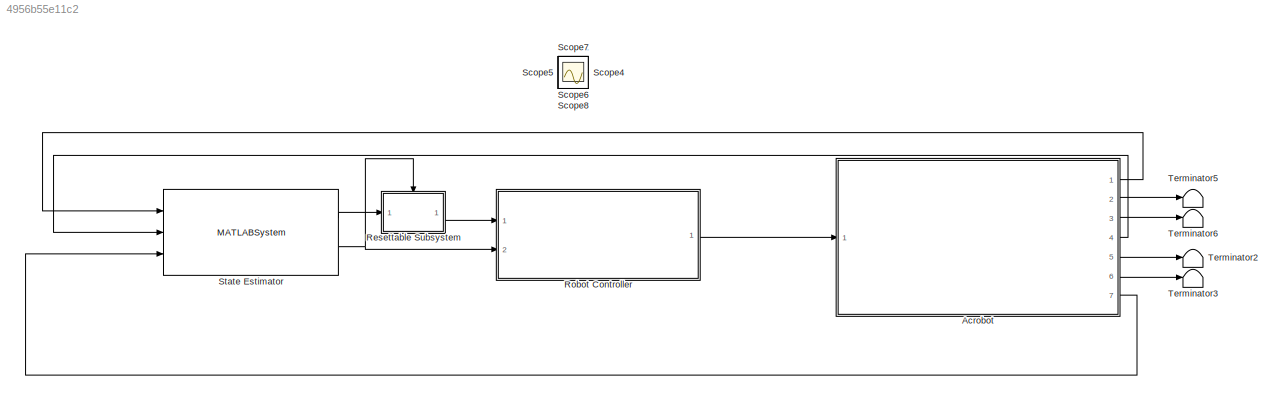
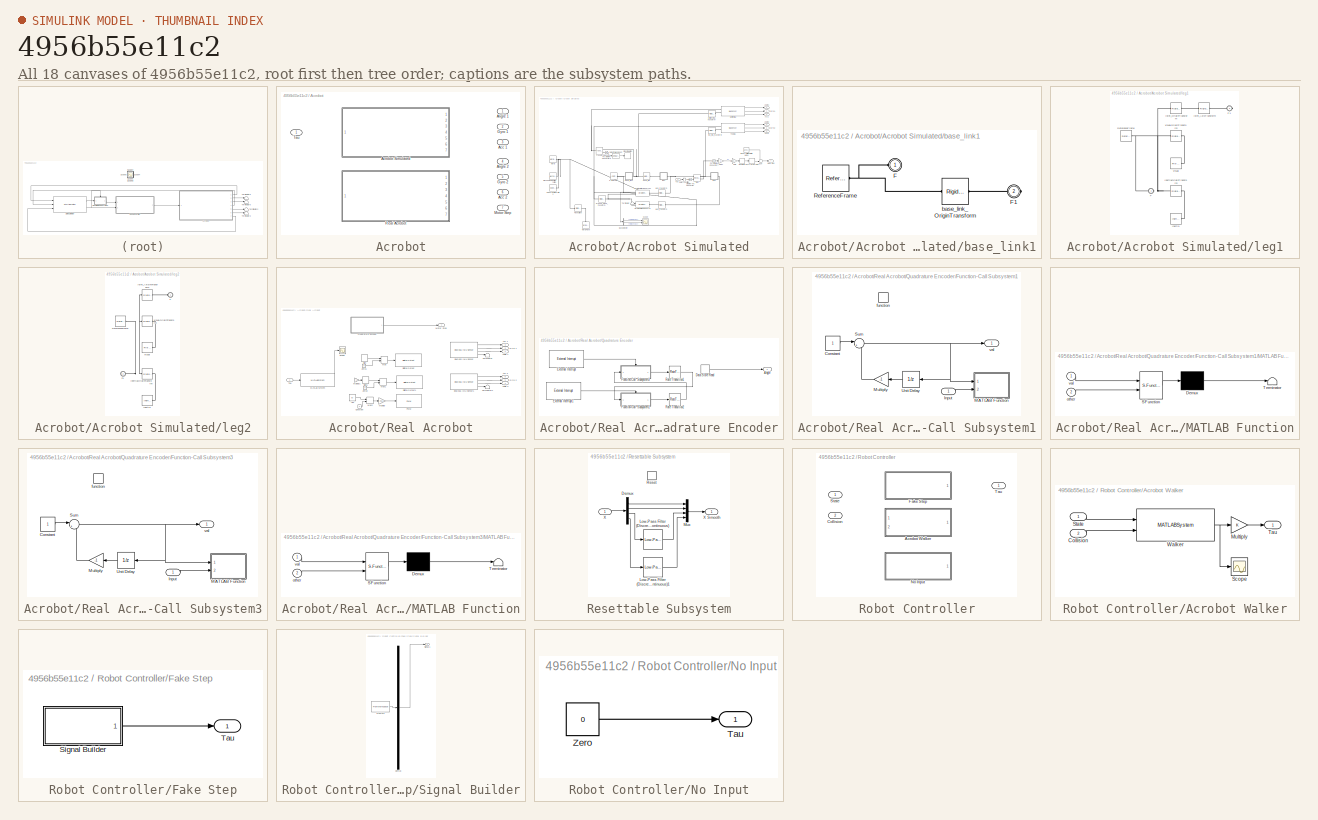
[diagram: thumbnail index - all 18 canvases of the model, root first then tree order]
MODEL slx_4956b55e11c2
KIND model
CONFIG AbsTol = auto
CONFIG EnableMultiTasking = on
CONFIG FixedStep = 0.0001
CONFIG MaxStep = auto
CONFIG MinStep = auto
CONFIG PreLoadFcn = addpath(genpath('libraries'));                  % Simulation Libraries\nrobotParameters;\n
CONFIG RelTol = 1e-3
CONFIG SampleTimeConstraint = Unconstrained
CONFIG Solver = FixedStepAuto
CONFIG SolverName = FixedStepAuto
CONFIG StartFcn = robotParameters;
CONFIG StartTime = 0.0
CONFIG StopTime = inf
WORKSPACE source: mxarray member
WORKSPACE A: Simulink.Signal (value not decoded)
BLOCK [SubSystem] Acrobot
  Ports = [1, 7]
  RequestExecContextInheritance = off
  Variant = on
  VariantControl = Variant1
BLOCK [Outport] Acrobot/Acc 1
  IconDisplay = Port number
  Port = 3
BLOCK [Outport] Acrobot/Acc 2
  IconDisplay = Port number
  Port = 6
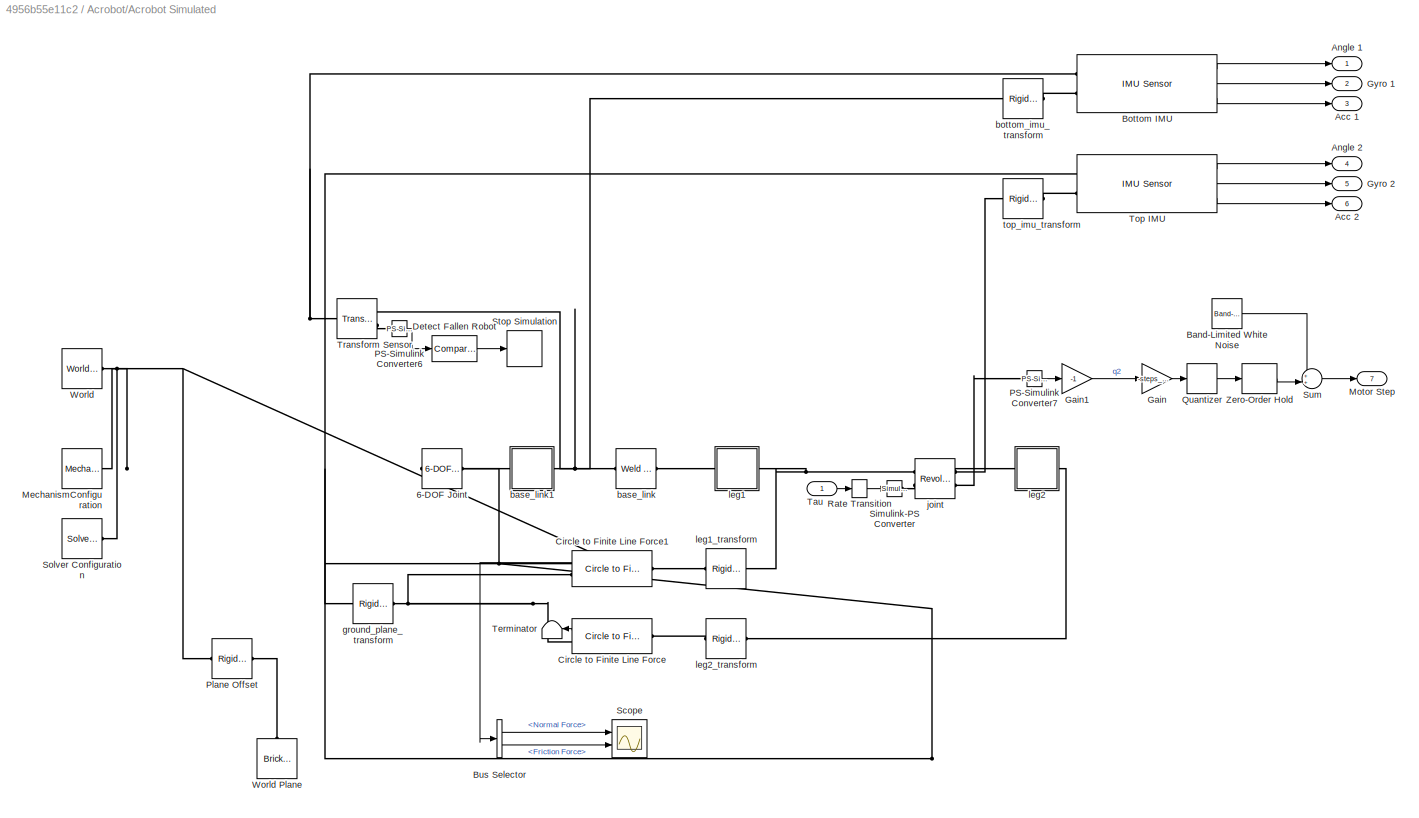
BLOCK [SubSystem] Acrobot/Acrobot Simulated
  Ports = [1, 7]
  RequestExecContextInheritance = off
  VariantControl = SIM_OUTPUT==1
BLOCK [Reference] Acrobot/Acrobot Simulated/6-DOF Joint  REF=sm_lib/Joints/6-DOF Joint
  Ports = [0, 0, 0, 0, 0, 1, 1]
  SourceBlock = sm_lib/Joints/6-DOF Joint
  SourceProductBaseCode = MS
  SourceProductName = Simscape Multibody
  SourceType = 6-DOF Joint
BLOCK [Outport] Acrobot/Acrobot Simulated/Acc 1
  IconDisplay = Port number
  Port = 3
BLOCK [Outport] Acrobot/Acrobot Simulated/Acc 2
  IconDisplay = Port number
  Port = 6
BLOCK [Outport] Acrobot/Acrobot Simulated/Angle 1
  IconDisplay = Port number
BLOCK [Outport] Acrobot/Acrobot Simulated/Angle 2
  IconDisplay = Port number
  Port = 4
BLOCK [Reference] Acrobot/Acrobot Simulated/Band-Limited White Noise  REF=simulink/Sources/Band-Limited
White Noise
  Ports = [0, 1]
  SourceBlock = simulink/Sources/Band-Limited\nWhite Noise
  SourceProductBaseCode = SL
  SourceProductName = Simulink
  SourceType = Band-Limited White Noise.
BLOCK [Reference] Acrobot/Acrobot Simulated/Bottom IMU  REF=imu_library/IMU Sensor  (lib defined in slx_344199f270f5)
  Ports = [0, 3, 0, 0, 0, 2]
  SourceBlock = imu_library/IMU Sensor
  SourceType = SubSystem
BLOCK [BusSelector] Acrobot/Acrobot Simulated/Bus Selector
  OutputAsBus = off
  OutputSignals = Normal Force,Friction Force
  Ports = [1, 2]
BLOCK [Reference] Acrobot/Acrobot Simulated/Circle to Finite Line Force  REF=Contact_Forces_Lib/2D/Circle to Finite Line Force
  Ports = [0, 1, 0, 0, 0, 1, 1]
  SourceBlock = Contact_Forces_Lib/2D/Circle to Finite Line Force
  SourceProductName = Simscape Multibody Contact Forces Library
  SourceType = Circle on Finite Line Force
BLOCK [Reference] Acrobot/Acrobot Simulated/Circle to Finite Line Force1  REF=Contact_Forces_Lib/2D/Circle to Finite Line Force
  Ports = [0, 1, 0, 0, 0, 1, 1]
  SourceBlock = Contact_Forces_Lib/2D/Circle to Finite Line Force
  SourceProductName = Simscape Multibody Contact Forces Library
  SourceType = Circle on Finite Line Force
BLOCK [Reference] Acrobot/Acrobot Simulated/Detect Fallen Robot  REF=simulink/Logic and Bit
Operations/Compare
To Constant
  Ports = [1, 1]
  SourceBlock = simulink/Logic and Bit\nOperations/Compare\nTo Constant
  SourceProductBaseCode = SL
  SourceProductName = Simulink
  SourceType = Compare To Constant
BLOCK [Gain] Acrobot/Acrobot Simulated/Gain
  Gain = -steps_per_rotation/(2*pi)
  OutDataTypeStr = Inherit: Inherit via internal rule
  ParamDataTypeStr = Inherit: Inherit via internal rule
  SaturateOnIntegerOverflow = off
BLOCK [Gain] Acrobot/Acrobot Simulated/Gain1
  Gain = -1
  OutDataTypeStr = Inherit: Inherit via internal rule
  ParamDataTypeStr = Inherit: Inherit via internal rule
  SaturateOnIntegerOverflow = off
BLOCK [Outport] Acrobot/Acrobot Simulated/Gyro 1
  IconDisplay = Port number
  Port = 2
BLOCK [Outport] Acrobot/Acrobot Simulated/Gyro 2
  IconDisplay = Port number
  Port = 5
BLOCK [Reference] Acrobot/Acrobot Simulated/MechanismConfiguration  REF=sm_lib/Utilities/Mechanism
Configuration
  Ports = [0, 0, 0, 0, 0, 0, 1]
  SourceBlock = sm_lib/Utilities/Mechanism\nConfiguration
  SourceProductBaseCode = MS
  SourceProductName = Simscape Multibody
  SourceType = Mechanism\nConfiguration
BLOCK [Outport] Acrobot/Acrobot Simulated/Motor Step
  IconDisplay = Port number
  Port = 7
BLOCK [Reference] Acrobot/Acrobot Simulated/PS-Simulink Converter6  REF=nesl_utility/PS-Simulink
Converter
  Ports = [0, 1, 0, 0, 0, 1]
  SourceBlock = nesl_utility/PS-Simulink\nConverter
  SourceProductBaseCode = SS
  SourceProductName = Simscape
  SourceType = PS-Simulink\nConverter
BLOCK [Reference] Acrobot/Acrobot Simulated/PS-Simulink Converter7  REF=nesl_utility/PS-Simulink
Converter
  Ports = [0, 1, 0, 0, 0, 1]
  SourceBlock = nesl_utility/PS-Simulink\nConverter
  SourceProductBaseCode = SS
  SourceProductName = Simscape
  SourceType = PS-Simulink\nConverter
BLOCK [Reference] Acrobot/Acrobot Simulated/Plane Offset  REF=sm_lib/Frames and
Transforms/Rigid
Transform
  Ports = [0, 0, 0, 0, 0, 1, 1]
  SourceBlock = sm_lib/Frames and\nTransforms/Rigid\nTransform
  SourceProductBaseCode = MS
  SourceProductName = Simscape Multibody
  SourceType = Rigid\nTransform
BLOCK [Quantizer] Acrobot/Acrobot Simulated/Quantizer
  QuantizationInterval = 1
BLOCK [RateTransition] Acrobot/Acrobot Simulated/Rate Transition
BLOCK [Scope] Acrobot/Acrobot Simulated/Scope
  Floating = off
  NumInputPorts = 2
  Ports = [2]
  ScopeSpecificationString = Simulink.scopes.TimeScopeBlockCfg('CurrentConfiguration', extmgr.ConfigurationSet(extmgr.Configuration('Core','General UI',true),extmgr.Configuration('Core','Source UI',true),extmgr.Configuration('Sources','WiredSimulink',true),extmgr.Configuration('Visuals','Time Domain',true,'SerializedDisplays',{struct('MinYLimReal','-6.21307','MaxYLimReal','33.18177','YLabelReal','','MinYLimMag','0.00000','Max...<+1403ch>
BLOCK [Reference] Acrobot/Acrobot Simulated/Simulink-PS Converter  REF=nesl_utility/Simulink-PS
Converter
  Ports = [1, 0, 0, 0, 0, 0, 1]
  SourceBlock = nesl_utility/Simulink-PS\nConverter
  SourceProductBaseCode = SS
  SourceProductName = Simscape
  SourceType = Simulink-PS\nConverter
BLOCK [Reference] Acrobot/Acrobot Simulated/Solver Configuration  REF=nesl_utility/Solver
Configuration
  Ports = [0, 0, 0, 0, 0, 0, 1]
  SourceBlock = nesl_utility/Solver\nConfiguration
  SourceProductBaseCode = SS
  SourceProductName = Simscape
  SourceType = Solver\nConfiguration
BLOCK [Stop] Acrobot/Acrobot Simulated/Stop Simulation
BLOCK [Sum] Acrobot/Acrobot Simulated/Sum
  IconShape = round
  InputSameDT = off
  Inputs = ++|
  OutDataTypeStr = Inherit: Inherit via internal rule
  Ports = [2, 1]
  SaturateOnIntegerOverflow = off
BLOCK [Inport] Acrobot/Acrobot Simulated/Tau
  IconDisplay = Port number
BLOCK [Terminator] Acrobot/Acrobot Simulated/Terminator
BLOCK [Reference] Acrobot/Acrobot Simulated/Top IMU  REF=imu_library/IMU Sensor  (lib defined in slx_344199f270f5)
  Ports = [0, 3, 0, 0, 0, 2]
  SourceBlock = imu_library/IMU Sensor
  SourceType = SubSystem
BLOCK [Reference] Acrobot/Acrobot Simulated/Transform Sensor  REF=sm_lib/Frames and
Transforms/Transform
Sensor
  Ports = [0, 0, 0, 0, 0, 1, 2]
  SourceBlock = sm_lib/Frames and\nTransforms/Transform\nSensor
  SourceProductBaseCode = MS
  SourceProductName = Simscape Multibody
  SourceType = Transform\nSensor
BLOCK [Reference] Acrobot/Acrobot Simulated/World  REF=sm_lib/Frames and
Transforms/World Frame
  Ports = [0, 0, 0, 0, 0, 0, 1]
  SourceBlock = sm_lib/Frames and\nTransforms/World Frame
  SourceProductBaseCode = MS
  SourceProductName = Simscape Multibody
  SourceType = World Frame
BLOCK [Reference] Acrobot/Acrobot Simulated/World Plane  REF=sm_lib/Body Elements/Brick Solid
  Ports = [0, 0, 0, 0, 0, 0, 1]
  SourceBlock = sm_lib/Body Elements/Brick Solid
  SourceProductBaseCode = MS
  SourceProductName = Simscape Multibody
  SourceType = Brick Solid
BLOCK [ZeroOrderHold] Acrobot/Acrobot Simulated/Zero-Order Hold
  SampleTime = 1/imu_sample_rate
BLOCK [Reference] Acrobot/Acrobot Simulated/base_link  REF=sm_lib/Joints/Weld Joint
  Ports = [0, 0, 0, 0, 0, 1, 1]
  SourceBlock = sm_lib/Joints/Weld Joint
  SourceProductBaseCode = MS
  SourceProductName = Simscape Multibody
  SourceType = Weld Joint
BLOCK [SubSystem] Acrobot/Acrobot Simulated/base_link1
  Ports = [0, 0, 0, 0, 0, 1, 1]
  RequestExecContextInheritance = off
BLOCK [PMIOPort] Acrobot/Acrobot Simulated/base_link1/F
  Side = Left
BLOCK [PMIOPort] Acrobot/Acrobot Simulated/base_link1/F1
  Port = 2
  Side = Right
BLOCK [Reference] Acrobot/Acrobot Simulated/base_link1/ReferenceFrame  REF=sm_lib/Frames and
Transforms/Reference
Frame
  Ports = [0, 0, 0, 0, 0, 0, 1]
  SourceBlock = sm_lib/Frames and\nTransforms/Reference\nFrame
  SourceProductBaseCode = MS
  SourceProductName = Simscape Multibody
  SourceType = Reference\nFrame
BLOCK [Reference] Acrobot/Acrobot Simulated/base_link1/base_link_OriginTransform  REF=sm_lib/Frames and
Transforms/Rigid
Transform
  Ports = [0, 0, 0, 0, 0, 1, 1]
  SourceBlock = sm_lib/Frames and\nTransforms/Rigid\nTransform
  SourceProductBaseCode = MS
  SourceProductName = Simscape Multibody
  SourceType = Rigid\nTransform
BLOCK [Reference] Acrobot/Acrobot Simulated/bottom_imu_transform  REF=sm_lib/Frames and
Transforms/Rigid
Transform
  Ports = [0, 0, 0, 0, 0, 1, 1]
  SourceBlock = sm_lib/Frames and\nTransforms/Rigid\nTransform
  SourceProductBaseCode = MS
  SourceProductName = Simscape Multibody
  SourceType = Rigid\nTransform
BLOCK [Reference] Acrobot/Acrobot Simulated/ground_plane_transform  REF=sm_lib/Frames and
Transforms/Rigid
Transform
  Ports = [0, 0, 0, 0, 0, 1, 1]
  SourceBlock = sm_lib/Frames and\nTransforms/Rigid\nTransform
  SourceProductBaseCode = MS
  SourceProductName = Simscape Multibody
  SourceType = Rigid\nTransform
BLOCK [Reference] Acrobot/Acrobot Simulated/joint  REF=sm_lib/Joints/Revolute Joint
  Ports = [0, 0, 0, 0, 0, 2, 2]
  SourceBlock = sm_lib/Joints/Revolute Joint
  SourceProductBaseCode = MS
  SourceProductName = Simscape Multibody
  SourceType = Revolute Joint
BLOCK [SubSystem] Acrobot/Acrobot Simulated/leg1
  Ports = [0, 0, 0, 0, 0, 1, 1]
  RequestExecContextInheritance = off
BLOCK [PMIOPort] Acrobot/Acrobot Simulated/leg1/F
  Side = Left
BLOCK [PMIOPort] Acrobot/Acrobot Simulated/leg1/F1
  Port = 2
  Side = Right
BLOCK [Reference] Acrobot/Acrobot Simulated/leg1/Inertia  REF=sm_lib/Body Elements/Inertia
  Ports = [0, 0, 0, 0, 0, 0, 1]
  SourceBlock = sm_lib/Body Elements/Inertia
  SourceProductBaseCode = MS
  SourceProductName = Simscape Multibody
  SourceType = Inertia
BLOCK [Reference] Acrobot/Acrobot Simulated/leg1/InertiaOriginTransform  REF=sm_lib/Frames and
Transforms/Rigid
Transform
  Ports = [0, 0, 0, 0, 0, 1, 1]
  SourceBlock = sm_lib/Frames and\nTransforms/Rigid\nTransform
  SourceProductBaseCode = MS
  SourceProductName = Simscape Multibody
  SourceType = Rigid\nTransform
BLOCK [Reference] Acrobot/Acrobot Simulated/leg1/ReferenceFrame  REF=sm_lib/Frames and
Transforms/Reference
Frame
  Ports = [0, 0, 0, 0, 0, 0, 1]
  SourceBlock = sm_lib/Frames and\nTransforms/Reference\nFrame
  SourceProductBaseCode = MS
  SourceProductName = Simscape Multibody
  SourceType = Reference\nFrame
BLOCK [Reference] Acrobot/Acrobot Simulated/leg1/joint_AxisTransform  REF=sm_lib/Frames and
Transforms/Rigid
Transform
  Ports = [0, 0, 0, 0, 0, 1, 1]
  SourceBlock = sm_lib/Frames and\nTransforms/Rigid\nTransform
  SourceProductBaseCode = MS
  SourceProductName = Simscape Multibody
  SourceType = Rigid\nTransform
BLOCK [Reference] Acrobot/Acrobot Simulated/leg1/joint_OriginTransform  REF=sm_lib/Frames and
Transforms/Rigid
Transform
  Ports = [0, 0, 0, 0, 0, 1, 1]
  SourceBlock = sm_lib/Frames and\nTransforms/Rigid\nTransform
  SourceProductBaseCode = MS
  SourceProductName = Simscape Multibody
  SourceType = Rigid\nTransform
BLOCK [Reference] Acrobot/Acrobot Simulated/leg1/visual  REF=sm_lib/Body Elements/File Solid
  Ports = [0, 0, 0, 0, 0, 0, 1]
  SourceBlock = sm_lib/Body Elements/File Solid
  SourceProductBaseCode = MS
  SourceProductName = Simscape Multibody
  SourceType = File Solid
BLOCK [Reference] Acrobot/Acrobot Simulated/leg1/visualOriginTransform  REF=sm_lib/Frames and
Transforms/Rigid
Transform
  Ports = [0, 0, 0, 0, 0, 1, 1]
  SourceBlock = sm_lib/Frames and\nTransforms/Rigid\nTransform
  SourceProductBaseCode = MS
  SourceProductName = Simscape Multibody
  SourceType = Rigid\nTransform
BLOCK [Reference] Acrobot/Acrobot Simulated/leg1_transform  REF=sm_lib/Frames and
Transforms/Rigid
Transform
  Ports = [0, 0, 0, 0, 0, 1, 1]
  SourceBlock = sm_lib/Frames and\nTransforms/Rigid\nTransform
  SourceProductBaseCode = MS
  SourceProductName = Simscape Multibody
  SourceType = Rigid\nTransform
BLOCK [SubSystem] Acrobot/Acrobot Simulated/leg2
  Ports = [0, 0, 0, 0, 0, 1, 1]
  RequestExecContextInheritance = off
BLOCK [PMIOPort] Acrobot/Acrobot Simulated/leg2/F
  Side = Left
BLOCK [PMIOPort] Acrobot/Acrobot Simulated/leg2/F1
  Port = 2
  Side = Right
BLOCK [Reference] Acrobot/Acrobot Simulated/leg2/Inertia  REF=sm_lib/Body Elements/Inertia
  Ports = [0, 0, 0, 0, 0, 0, 1]
  SourceBlock = sm_lib/Body Elements/Inertia
  SourceProductBaseCode = MS
  SourceProductName = Simscape Multibody
  SourceType = Inertia
BLOCK [Reference] Acrobot/Acrobot Simulated/leg2/InertiaOriginTransform  REF=sm_lib/Frames and
Transforms/Rigid
Transform
  Ports = [0, 0, 0, 0, 0, 1, 1]
  SourceBlock = sm_lib/Frames and\nTransforms/Rigid\nTransform
  SourceProductBaseCode = MS
  SourceProductName = Simscape Multibody
  SourceType = Rigid\nTransform
BLOCK [Reference] Acrobot/Acrobot Simulated/leg2/ReferenceFrame  REF=sm_lib/Frames and
Transforms/Reference
Frame
  Ports = [0, 0, 0, 0, 0, 0, 1]
  SourceBlock = sm_lib/Frames and\nTransforms/Reference\nFrame
  SourceProductBaseCode = MS
  SourceProductName = Simscape Multibody
  SourceType = Reference\nFrame
BLOCK [Reference] Acrobot/Acrobot Simulated/leg2/joint_AxisInvTransform  REF=sm_lib/Frames and
Transforms/Rigid
Transform
  Ports = [0, 0, 0, 0, 0, 1, 1]
  SourceBlock = sm_lib/Frames and\nTransforms/Rigid\nTransform
  SourceProductBaseCode = MS
  SourceProductName = Simscape Multibody
  SourceType = Rigid\nTransform
BLOCK [Reference] Acrobot/Acrobot Simulated/leg2/visual  REF=sm_lib/Body Elements/File Solid
  Ports = [0, 0, 0, 0, 0, 0, 1]
  SourceBlock = sm_lib/Body Elements/File Solid
  SourceProductBaseCode = MS
  SourceProductName = Simscape Multibody
  SourceType = File Solid
BLOCK [Reference] Acrobot/Acrobot Simulated/leg2/visualOriginTransform  REF=sm_lib/Frames and
Transforms/Rigid
Transform
  Ports = [0, 0, 0, 0, 0, 1, 1]
  SourceBlock = sm_lib/Frames and\nTransforms/Rigid\nTransform
  SourceProductBaseCode = MS
  SourceProductName = Simscape Multibody
  SourceType = Rigid\nTransform
BLOCK [Reference] Acrobot/Acrobot Simulated/leg2_transform  REF=sm_lib/Frames and
Transforms/Rigid
Transform
  Ports = [0, 0, 0, 0, 0, 1, 1]
  SourceBlock = sm_lib/Frames and\nTransforms/Rigid\nTransform
  SourceProductBaseCode = MS
  SourceProductName = Simscape Multibody
  SourceType = Rigid\nTransform
BLOCK [Reference] Acrobot/Acrobot Simulated/top_imu_transform  REF=sm_lib/Frames and
Transforms/Rigid
Transform
  Ports = [0, 0, 0, 0, 0, 1, 1]
  SourceBlock = sm_lib/Frames and\nTransforms/Rigid\nTransform
  SourceProductBaseCode = MS
  SourceProductName = Simscape Multibody
  SourceType = Rigid\nTransform
BLOCK [Outport] Acrobot/Angle 1
  IconDisplay = Port number
BLOCK [Outport] Acrobot/Angle 2
  IconDisplay = Port number
  Port = 4
BLOCK [Outport] Acrobot/Gyro 1
  IconDisplay = Port number
  Port = 2
BLOCK [Outport] Acrobot/Gyro 2
  IconDisplay = Port number
  Port = 5
BLOCK [Outport] Acrobot/Motor Step
  IconDisplay = Port number
  Port = 7
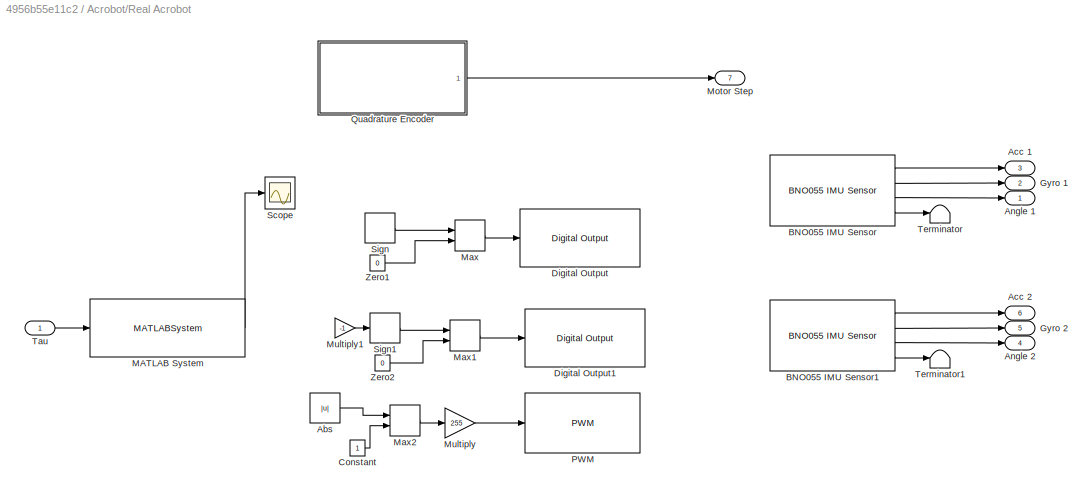
BLOCK [SubSystem] Acrobot/Real Acrobot
  Ports = [1, 7]
  RequestExecContextInheritance = off
  VariantControl = SIM_OUTPUT==2
BLOCK [Abs] Acrobot/Real Acrobot/Abs
  SaturateOnIntegerOverflow = off
BLOCK [Outport] Acrobot/Real Acrobot/Acc 1
  IconDisplay = Port number
  Port = 3
BLOCK [Outport] Acrobot/Real Acrobot/Acc 2
  IconDisplay = Port number
  Port = 6
BLOCK [Outport] Acrobot/Real Acrobot/Angle 1
  IconDisplay = Port number
BLOCK [Outport] Acrobot/Real Acrobot/Angle 2
  IconDisplay = Port number
  Port = 4
BLOCK [Reference] Acrobot/Real Acrobot/BNO055 IMU Sensor  REF=arduinosensorlib/BNO055 IMU Sensor
  Ports = [0, 4]
  SourceBlock = arduinosensorlib/BNO055 IMU Sensor
  SourceProductBaseCode = ARDUINO
  SourceProductName = Simulink Support Package for Arduino Hardware
  SourceType = Arduino BNO055
BLOCK [Reference] Acrobot/Real Acrobot/BNO055 IMU Sensor1  REF=arduinosensorlib/BNO055 IMU Sensor
  Ports = [0, 4]
  SourceBlock = arduinosensorlib/BNO055 IMU Sensor
  SourceProductBaseCode = ARDUINO
  SourceProductName = Simulink Support Package for Arduino Hardware
  SourceType = Arduino BNO055
BLOCK [Constant] Acrobot/Real Acrobot/Constant
BLOCK [Reference] Acrobot/Real Acrobot/Digital Output  REF=arduinolib/Digital Output
  Ports = [1]
  SourceBlock = arduinolib/Digital Output
  SourceProductBaseCode = ARDUINO
  SourceProductName = Simulink Support Package for Arduino Hardware
  SourceType = Arduino Digital Output
BLOCK [Reference] Acrobot/Real Acrobot/Digital Output1  REF=arduinolib/Digital Output
  Ports = [1]
  SourceBlock = arduinolib/Digital Output
  SourceProductBaseCode = ARDUINO
  SourceProductName = Simulink Support Package for Arduino Hardware
  SourceType = Arduino Digital Output
BLOCK [Outport] Acrobot/Real Acrobot/Gyro 1
  IconDisplay = Port number
  Port = 2
BLOCK [Outport] Acrobot/Real Acrobot/Gyro 2
  IconDisplay = Port number
  Port = 5
BLOCK [MATLABSystem] Acrobot/Real Acrobot/MATLAB System
  MaskDisplay = disp('acrobot_torque_control');\nport_label('input',1,'tau');\nport_label('output',1,'pwm');
  MaskType = acrobot.acrobot_torque_control
  Ports = [1, 1]
  SimulateUsing = Code generation
  System = acrobot.acrobot_torque_control
  moi_motor = load( 'data/torque_calculations.mat', 'moi_motor' ).moi_motor
  p1 = load( 'data/torque_calculations.mat', 'p1' ).p1
  p2 = load( 'data/torque_calculations.mat', 'p2' ).p2
  steps_per_rotation = 2797
BLOCK [MinMax] Acrobot/Real Acrobot/Max
  Function = max
  InputSameDT = off
  Inputs = 2
  Ports = [2, 1]
  SaturateOnIntegerOverflow = off
BLOCK [MinMax] Acrobot/Real Acrobot/Max1
  Function = max
  InputSameDT = off
  Inputs = 2
  Ports = [2, 1]
  SaturateOnIntegerOverflow = off
BLOCK [MinMax] Acrobot/Real Acrobot/Max2
  InputSameDT = off
  Inputs = 2
  Ports = [2, 1]
  SaturateOnIntegerOverflow = off
BLOCK [Outport] Acrobot/Real Acrobot/Motor Step
  IconDisplay = Port number
  Port = 7
BLOCK [Gain] Acrobot/Real Acrobot/Multiply
  Gain = 255
  OutDataTypeStr = Inherit: Inherit via internal rule
  ParamDataTypeStr = Inherit: Inherit via internal rule
  SaturateOnIntegerOverflow = off
BLOCK [Gain] Acrobot/Real Acrobot/Multiply1
  Gain = -1
  OutDataTypeStr = Inherit: Inherit via internal rule
  ParamDataTypeStr = Inherit: Inherit via internal rule
  SaturateOnIntegerOverflow = off
BLOCK [Reference] Acrobot/Real Acrobot/PWM  REF=arduinolib/PWM
  Ports = [1]
  SourceBlock = arduinolib/PWM
  SourceProductBaseCode = ARDUINO
  SourceProductName = Simulink Support Package for Arduino Hardware
  SourceType = Arduino PWM
BLOCK [SubSystem] Acrobot/Real Acrobot/Quadrature Encoder
  Ports = [0, 1]
  RequestExecContextInheritance = off
BLOCK [Outport] Acrobot/Real Acrobot/Quadrature Encoder/Angle
  IconDisplay = Port number
BLOCK [DataStoreRead] Acrobot/Real Acrobot/Quadrature Encoder/Data Store Read
  Ports = [0, 1]
BLOCK [Reference] Acrobot/Real Acrobot/Quadrature Encoder/External Interrupt  REF=arduinolib/External Interrupt
  Ports = [0, 1]
  SourceBlock = arduinolib/External Interrupt
  SourceProductBaseCode = ARDUINO
  SourceProductName = Simulink Support Package for Arduino Hardware
  SourceType = Arduino Interrupt Block
BLOCK [Reference] Acrobot/Real Acrobot/Quadrature Encoder/External Interrupt1  REF=arduinolib/External Interrupt
  Ports = [0, 1]
  SourceBlock = arduinolib/External Interrupt
  SourceProductBaseCode = ARDUINO
  SourceProductName = Simulink Support Package for Arduino Hardware
  SourceType = Arduino Interrupt Block
BLOCK [SubSystem] Acrobot/Real Acrobot/Quadrature Encoder/Function-Call Subsystem1
  Ports = [1, 1, 0, 1]
  RequestExecContextInheritance = off
  TreatAsAtomicUnit = on
BLOCK [Constant] Acrobot/Real Acrobot/Quadrature Encoder/Function-Call Subsystem1/Constant
BLOCK [Inport] Acrobot/Real Acrobot/Quadrature Encoder/Function-Call Subsystem1/Input
  IconDisplay = Port number
BLOCK [SubSystem] Acrobot/Real Acrobot/Quadrature Encoder/Function-Call Subsystem1/MATLAB Function
  ErrorFcn = Stateflow.Translate.translate
  PermitHierarchicalResolution = ExplicitOnly
  Ports = [2]
  RequestExecContextInheritance = off
  SFBlockType = MATLAB Function
  TreatAsAtomicUnit = on
BLOCK [Demux] Acrobot/Real Acrobot/Quadrature Encoder/Function-Call Subsystem1/MATLAB Function/ Demux 
  Outputs = 1
  Ports = [1, 1]
BLOCK [S-Function] Acrobot/Real Acrobot/Quadrature Encoder/Function-Call Subsystem1/MATLAB Function/ SFunction 
  EnableBusSupport = on
  FunctionName = sf_sfun
  PortCounts = [2 1]
  Ports = [2, 1]
  SFcnIsStateOwnerBlock = off
  SFunctionDeploymentMode = off
  Tag = Stateflow S-Function 1
BLOCK [Terminator] Acrobot/Real Acrobot/Quadrature Encoder/Function-Call Subsystem1/MATLAB Function/ Terminator 
BLOCK [Inport] Acrobot/Real Acrobot/Quadrature Encoder/Function-Call Subsystem1/MATLAB Function/other
  IconDisplay = Port number
  Port = 2
BLOCK [Inport] Acrobot/Real Acrobot/Quadrature Encoder/Function-Call Subsystem1/MATLAB Function/val
  IconDisplay = Port number
BLOCK [Gain] Acrobot/Real Acrobot/Quadrature Encoder/Function-Call Subsystem1/Multiply
  Gain = -1
  OutDataTypeStr = Inherit: Inherit via internal rule
  ParamDataTypeStr = Inherit: Inherit via internal rule
  SaturateOnIntegerOverflow = off
BLOCK [Sum] Acrobot/Real Acrobot/Quadrature Encoder/Function-Call Subsystem1/Sum
  IconShape = round
  InputSameDT = off
  Inputs = |++
  OutDataTypeStr = Inherit: Inherit via internal rule
  Ports = [2, 1]
  SaturateOnIntegerOverflow = off
BLOCK [UnitDelay] Acrobot/Real Acrobot/Quadrature Encoder/Function-Call Subsystem1/Unit Delay
  HasFrameUpgradeWarning = on
  SampleTime = -1
BLOCK [TriggerPort] Acrobot/Real Acrobot/Quadrature Encoder/Function-Call Subsystem1/function
  Ports = []
  StatesWhenEnabling = held
  TriggerType = function-call
  VariantControl = Variant
BLOCK [Outport] Acrobot/Real Acrobot/Quadrature Encoder/Function-Call Subsystem1/val
  IconDisplay = Port number
  VectorParamsAs1DForOutWhenUnconnected = off
BLOCK [SubSystem] Acrobot/Real Acrobot/Quadrature Encoder/Function-Call Subsystem3
  Ports = [1, 1, 0, 1]
  RequestExecContextInheritance = off
  TreatAsAtomicUnit = on
BLOCK [Constant] Acrobot/Real Acrobot/Quadrature Encoder/Function-Call Subsystem3/Constant
BLOCK [Inport] Acrobot/Real Acrobot/Quadrature Encoder/Function-Call Subsystem3/Input
  IconDisplay = Port number
BLOCK [SubSystem] Acrobot/Real Acrobot/Quadrature Encoder/Function-Call Subsystem3/MATLAB Function
  ErrorFcn = Stateflow.Translate.translate
  PermitHierarchicalResolution = ExplicitOnly
  Ports = [2]
  RequestExecContextInheritance = off
  SFBlockType = MATLAB Function
  TreatAsAtomicUnit = on
BLOCK [Demux] Acrobot/Real Acrobot/Quadrature Encoder/Function-Call Subsystem3/MATLAB Function/ Demux 
  Outputs = 1
  Ports = [1, 1]
BLOCK [S-Function] Acrobot/Real Acrobot/Quadrature Encoder/Function-Call Subsystem3/MATLAB Function/ SFunction 
  EnableBusSupport = on
  FunctionName = sf_sfun
  PortCounts = [2 1]
  Ports = [2, 1]
  SFcnIsStateOwnerBlock = off
  SFunctionDeploymentMode = off
  Tag = Stateflow S-Function 2
BLOCK [Terminator] Acrobot/Real Acrobot/Quadrature Encoder/Function-Call Subsystem3/MATLAB Function/ Terminator 
BLOCK [Inport] Acrobot/Real Acrobot/Quadrature Encoder/Function-Call Subsystem3/MATLAB Function/other
  IconDisplay = Port number
  Port = 2
BLOCK [Inport] Acrobot/Real Acrobot/Quadrature Encoder/Function-Call Subsystem3/MATLAB Function/val
  IconDisplay = Port number
BLOCK [Gain] Acrobot/Real Acrobot/Quadrature Encoder/Function-Call Subsystem3/Multiply
  Gain = -1
  OutDataTypeStr = Inherit: Inherit via internal rule
  ParamDataTypeStr = Inherit: Inherit via internal rule
  SaturateOnIntegerOverflow = off
BLOCK [Sum] Acrobot/Real Acrobot/Quadrature Encoder/Function-Call Subsystem3/Sum
  IconShape = round
  InputSameDT = off
  Inputs = |++
  OutDataTypeStr = Inherit: Inherit via internal rule
  Ports = [2, 1]
  SaturateOnIntegerOverflow = off
BLOCK [UnitDelay] Acrobot/Real Acrobot/Quadrature Encoder/Function-Call Subsystem3/Unit Delay
  HasFrameUpgradeWarning = on
  SampleTime = -1
BLOCK [TriggerPort] Acrobot/Real Acrobot/Quadrature Encoder/Function-Call Subsystem3/function
  Ports = []
  StatesWhenEnabling = held
  TriggerType = function-call
  VariantControl = Variant
BLOCK [Outport] Acrobot/Real Acrobot/Quadrature Encoder/Function-Call Subsystem3/val
  IconDisplay = Port number
  VectorParamsAs1DForOutWhenUnconnected = off
BLOCK [RateTransition] Acrobot/Real Acrobot/Quadrature Encoder/Rate Transition1
  Deterministic = off
BLOCK [RateTransition] Acrobot/Real Acrobot/Quadrature Encoder/Rate Transition2
  Deterministic = off
BLOCK [Scope] Acrobot/Real Acrobot/Scope
  Floating = off
  NumInputPorts = 1
  Ports = [1]
  ScopeSpecificationString = Simulink.scopes.TimeScopeBlockCfg('CurrentConfiguration', extmgr.ConfigurationSet(extmgr.Configuration('Core','General UI',true),extmgr.Configuration('Core','Source UI',true),extmgr.Configuration('Sources','WiredSimulink',true,'DataLoggingVariableName','ScopeData1'),extmgr.Configuration('Visuals','Time Domain',true),extmgr.Configuration('Tools','Plot Navigation',true),extmgr.Configuration('Tools',...<+40ch>
BLOCK [Signum] Acrobot/Real Acrobot/Sign
BLOCK [Signum] Acrobot/Real Acrobot/Sign1
BLOCK [Inport] Acrobot/Real Acrobot/Tau
  IconDisplay = Port number
BLOCK [Terminator] Acrobot/Real Acrobot/Terminator
BLOCK [Terminator] Acrobot/Real Acrobot/Terminator1
BLOCK [Constant] Acrobot/Real Acrobot/Zero1
  OutDataTypeStr = Inherit: Inherit via back propagation
  Value = 0
BLOCK [Constant] Acrobot/Real Acrobot/Zero2
  OutDataTypeStr = Inherit: Inherit via back propagation
  Value = 0
BLOCK [Inport] Acrobot/Tau
  IconDisplay = Port number
BLOCK [SubSystem] Resettable Subsystem
  Ports = [1, 1, 0, 0, 0, 0, 0, 0, 1]
  RequestExecContextInheritance = off
  TreatAsAtomicUnit = on
BLOCK [Demux] Resettable Subsystem/Demux
  DisplayOption = bar
  Ports = [1, 4]
BLOCK [Reference] Resettable Subsystem/Low-Pass Filter (Discrete or Continuous)  REF=eeGeneralControl/Low-Pass Filter
(Discrete or Continuous)
  Ports = [1, 1]
  SourceBlock = eeGeneralControl/Low-Pass Filter\n(Discrete or Continuous)
  SourceProductBaseCode = PS
  SourceProductName = Simscape Electrical
  SourceType = Low-Pass Filter (Discrete or Continuous)
BLOCK [Reference] Resettable Subsystem/Low-Pass Filter (Discrete or Continuous)1  REF=eeGeneralControl/Low-Pass Filter
(Discrete or Continuous)
  Ports = [1, 1]
  SourceBlock = eeGeneralControl/Low-Pass Filter\n(Discrete or Continuous)
  SourceProductBaseCode = PS
  SourceProductName = Simscape Electrical
  SourceType = Low-Pass Filter (Discrete or Continuous)
BLOCK [Mux] Resettable Subsystem/Mux
  DisplayOption = bar
  Ports = [4, 1]
BLOCK [ResetPort] Resettable Subsystem/Reset
  DisableCoverage = on
BLOCK [Inport] Resettable Subsystem/X
  IconDisplay = Port number
BLOCK [Outport] Resettable Subsystem/X Smooth
  IconDisplay = Port number
BLOCK [SubSystem] Robot Controller
  Ports = [2, 1]
  RequestExecContextInheritance = off
  Variant = on
BLOCK [SubSystem] Robot Controller/Acrobot Walker
  Ports = [2, 1]
  RequestExecContextInheritance = off
  VariantControl = ROBOT_CONTROLLER==1
BLOCK [Inport] Robot Controller/Acrobot Walker/Collision
  IconDisplay = Port number
  Port = 2
BLOCK [Gain] Robot Controller/Acrobot Walker/Multiply
  OutDataTypeStr = Inherit: Inherit via internal rule
  ParamDataTypeStr = Inherit: Inherit via internal rule
  SaturateOnIntegerOverflow = off
BLOCK [Scope] Robot Controller/Acrobot Walker/Scope
  Floating = off
  NumInputPorts = 1
  Ports = [1]
  ScopeSpecificationString = Simulink.scopes.TimeScopeBlockCfg('CurrentConfiguration', extmgr.ConfigurationSet(extmgr.Configuration('Core','General UI',true),extmgr.Configuration('Core','Source UI',true),extmgr.Configuration('Sources','WiredSimulink',true,'DataLoggingVariableName','ScopeData1'),extmgr.Configuration('Visuals','Time Domain',true,'SerializedDisplays',{struct('MinYLimReal','-0.00115','MaxYLimReal','0.0081','YLabe...<+1389ch>
BLOCK [Inport] Robot Controller/Acrobot Walker/State
  IconDisplay = Port number
BLOCK [Outport] Robot Controller/Acrobot Walker/Tau
  IconDisplay = Port number
BLOCK [MATLABSystem] Robot Controller/Acrobot Walker/Walker
  MaskDisplay = disp('acrobot_walker');\nport_label('input',1,'state');\nport_label('input',2,'collision');\nport_label('output',1,'tau');
  MaskType = acrobot.acrobot_walker
  Ports = [2, 1]
  SimulateUsing = Interpreted execution
  System = acrobot.acrobot_walker
  actual_robot = 0
  angle_limit = pi / 20
  display = 1
  gamma = 0.05
  integral_saturation = 2
  kb = 0.01
  kd = 5
  ki = 0
  kp = 200
  x = zeros( 4, 1 )
BLOCK [Inport] Robot Controller/Collision
  IconDisplay = Port number
  Port = 2
BLOCK [SubSystem] Robot Controller/Fake Step
  Ports = [0, 1]
  RequestExecContextInheritance = off
  VariantControl = ROBOT_CONTROLLER==0
BLOCK [SubSystem] Robot Controller/Fake Step/Signal Builder
  ClipboardFcn = sigbuilder_block('clipboard');
  CloseFcn = sigbuilder_block('close');
  ContinueFcn = sigbuilder_block('continue');
  CopyFcn = sigbuilder_block('copy');
  DeleteFcn = sigbuilder_block('delete');
  LoadFcn = sigbuilder_block('load');
  MaskHideContents = on
  ModelCloseFcn = sigbuilder_block('modelClose');
  NameChangeFcn = sigbuilder_block('namechange');
  OpenFcn = sigbuilder_block('open',[115.5 143.25 565.5 399.75 ]);
  PauseFcn = sigbuilder_block('pause');
  Ports = [0, 1]
  PreSaveFcn = sigbuilder_block('preSave');
  RequestExecContextInheritance = off
  StartFcn = sigbuilder_block('start');
  StopFcn = sigbuilder_block('stop');
  Tag = STV Subsys
BLOCK [Demux] Robot Controller/Fake Step/Signal Builder/Demux
  Outputs = 1
  Ports = [1, 1]
  Tag = STV Demux
BLOCK [FromWorkspace] Robot Controller/Fake Step/Signal Builder/FromWs
  SampleTime = 0
  Tag = STV FromWs
  VariableName = tuvar
  ZeroCross = on
BLOCK [Outport] Robot Controller/Fake Step/Signal Builder/Signal 1
  IconDisplay = Port number
  Tag = STV Outport
BLOCK [Outport] Robot Controller/Fake Step/Tau
  IconDisplay = Port number
BLOCK [SubSystem] Robot Controller/No Input
  Ports = [0, 1]
  RequestExecContextInheritance = off
  VariantControl = ROBOT_CONTROLLER==2
BLOCK [Outport] Robot Controller/No Input/Tau
  IconDisplay = Port number
BLOCK [Constant] Robot Controller/No Input/Zero
  OutDataTypeStr = Inherit: Inherit via back propagation
  Value = 0
BLOCK [Inport] Robot Controller/State
  IconDisplay = Port number
BLOCK [Outport] Robot Controller/Tau
  IconDisplay = Port number
BLOCK [Scope] Scope
  Floating = off
  IOType = viewer
  NumInputPorts = 1
  Ports = []
  ScopeSpecificationString = Simulink.scopes.TimeScopeBlockCfg('CurrentConfiguration', extmgr.ConfigurationSet(extmgr.Configuration('Core','General UI',true),extmgr.Configuration('Core','Source UI',true),extmgr.Configuration('Sources','WiredSimulink',true,'DataLoggingVariableName','ScopeData1'),extmgr.Configuration('Visuals','Time Domain',true,'SerializedDisplays',{struct('MinYLimReal','-10.00000','MaxYLimReal','10.00000','YL...<+1395ch>
BLOCK [Scope] Scope1
  Floating = off
  IOType = viewer
  NumInputPorts = 1
  Ports = []
  ScopeSpecificationString = Simulink.scopes.TimeScopeBlockCfg('CurrentConfiguration', extmgr.ConfigurationSet(extmgr.Configuration('Core','General UI',true),extmgr.Configuration('Core','Source UI',true),extmgr.Configuration('Sources','WiredSimulink',true,'DataLoggingVariableName','ScopeData2'),extmgr.Configuration('Visuals','Time Domain',true,'SerializedDisplays',{struct('MinYLimReal','-1.00000','MaxYLimReal','1.00000','YLab...<+1388ch>
BLOCK [Scope] Scope2
  Floating = off
  IOType = viewer
  NumInputPorts = 1
  Ports = []
  ScopeSpecificationString = Simulink.scopes.TimeScopeBlockCfg('CurrentConfiguration', extmgr.ConfigurationSet(extmgr.Configuration('Core','General UI',true),extmgr.Configuration('Core','Source UI',true),extmgr.Configuration('Sources','WiredSimulink',true,'DataLoggingVariableName','ScopeData3'),extmgr.Configuration('Visuals','Time Domain',true,'SerializedDisplays',{struct('MinYLimReal','-0.7854','MaxYLimReal','7.06858','YLabe...<+1384ch>
BLOCK [Scope] Scope4
  Floating = off
  IOType = viewer
  NumInputPorts = 1
  Ports = []
  ScopeSpecificationString = Simulink.scopes.TimeScopeBlockCfg('CurrentConfiguration', extmgr.ConfigurationSet(extmgr.Configuration('Core','General UI',true),extmgr.Configuration('Core','Source UI',true),extmgr.Configuration('Sources','WiredSimulink',true,'DataLoggingVariableName','ScopeData4'),extmgr.Configuration('Visuals','Time Domain',true,'SerializedDisplays',{struct('MinYLimReal','-10.00000','MaxYLimReal','10.00000','YL...<+1394ch>
BLOCK [Scope] Scope5
  Floating = off
  IOType = viewer
  NumInputPorts = 1
  Ports = []
  ScopeSpecificationString = Simulink.scopes.TimeScopeBlockCfg('CurrentConfiguration', extmgr.ConfigurationSet(extmgr.Configuration('Core','General UI',true),extmgr.Configuration('Core','Source UI',true),extmgr.Configuration('Sources','WiredSimulink',true,'DataLoggingVariableName','ScopeData5'),extmgr.Configuration('Visuals','Time Domain',true,'SerializedDisplays',{struct('MinYLimReal','17.22714','MaxYLimReal','37.22714','YLa...<+1394ch>
BLOCK [Scope] Scope6
  Floating = off
  IOType = viewer
  NumInputPorts = 1
  Ports = []
  ScopeSpecificationString = Simulink.scopes.TimeScopeBlockCfg('CurrentConfiguration', extmgr.ConfigurationSet(extmgr.Configuration('Core','General UI',true),extmgr.Configuration('Core','Source UI',true),extmgr.Configuration('Sources','WiredSimulink',true,'DataLoggingVariableName','ScopeData6'),extmgr.Configuration('Visuals','Time Domain',true,'SerializedDisplays',{struct('MinYLimReal','-10.00000','MaxYLimReal','10.00000','YL...<+1394ch>
BLOCK [Scope] Scope7
  Floating = off
  IOType = viewer
  NumInputPorts = 1
  Ports = []
  ScopeSpecificationString = Simulink.scopes.TimeScopeBlockCfg('CurrentConfiguration', extmgr.ConfigurationSet(extmgr.Configuration('Core','General UI',true),extmgr.Configuration('Core','Source UI',true),extmgr.Configuration('Sources','WiredSimulink',true,'DataLoggingVariableName','ScopeData1'),extmgr.Configuration('Visuals','Time Domain',true,'SerializedDisplays',{struct('MinYLimReal','-10.00000','MaxYLimReal','10.00000','YL...<+1395ch>
BLOCK [Scope] Scope8
  Floating = off
  IOType = viewer
  NumInputPorts = 1
  Ports = []
  ScopeSpecificationString = Simulink.scopes.TimeScopeBlockCfg('CurrentConfiguration', extmgr.ConfigurationSet(extmgr.Configuration('Core','General UI',true),extmgr.Configuration('Core','Source UI',true),extmgr.Configuration('Sources','WiredSimulink',true,'DataLoggingVariableName','ScopeData3'),extmgr.Configuration('Visuals','Time Domain',true,'SerializedDisplays',{struct('MinYLimReal','-10.00000','MaxYLimReal','10.00000','YL...<+1394ch>
BLOCK [MATLABSystem] State Estimator
  MaskDisplay = disp('acrobot_state_estimator');\nport_label('input',1,'pos1');\nport_label('input',2,'pos2');\nport_label('input',3,'motor_step');\nport_label('output',1,'state');\nport_label('output',2,'collision');
  MaskType = acrobot.acrobot_state_estimator
  Ports = [3, 2]
  SimulateUsing = Code generation
  System = acrobot.acrobot_state_estimator
  flip_direction = -1
  leg_length = leg_length+foot_radius
  max_velocity_change = 100
  sample_time = 1/imu_sample_rate
  steps_per_rotation = steps_per_rotation
BLOCK [Terminator] Terminator2
BLOCK [Terminator] Terminator3
BLOCK [Terminator] Terminator5
BLOCK [Terminator] Terminator6
LINE Acrobot/Acrobot Simulated/Band-Limited White Noise:1 -> Acrobot/Acrobot Simulated/Sum:1
LINE Acrobot/Acrobot Simulated/Bottom IMU:1 -> Acrobot/Acrobot Simulated/Angle 1:1
LINE Acrobot/Acrobot Simulated/Bottom IMU:2 -> Acrobot/Acrobot Simulated/Gyro 1:1
LINE Acrobot/Acrobot Simulated/Bottom IMU:3 -> Acrobot/Acrobot Simulated/Acc 1:1
LINE Acrobot/Acrobot Simulated/Bus Selector:1 -> Acrobot/Acrobot Simulated/Scope:1
LINE Acrobot/Acrobot Simulated/Bus Selector:2 -> Acrobot/Acrobot Simulated/Scope:2
LINE Acrobot/Acrobot Simulated/Circle to Finite Line Force1:1 -> Acrobot/Acrobot Simulated/Bus Selector:1
LINE Acrobot/Acrobot Simulated/Circle to Finite Line Force:1 -> Acrobot/Acrobot Simulated/Terminator:1
LINE Acrobot/Acrobot Simulated/Detect Fallen Robot:1 -> Acrobot/Acrobot Simulated/Stop Simulation:1
LINE Acrobot/Acrobot Simulated/Gain1:1 -> Acrobot/Acrobot Simulated/Gain:1
LINE Acrobot/Acrobot Simulated/Gain:1 -> Acrobot/Acrobot Simulated/Quantizer:1
LINE Acrobot/Acrobot Simulated/PS-Simulink Converter6:1 -> Acrobot/Acrobot Simulated/Detect Fallen Robot:1
LINE Acrobot/Acrobot Simulated/PS-Simulink Converter7:1 -> Acrobot/Acrobot Simulated/Gain1:1
LINE Acrobot/Acrobot Simulated/Quantizer:1 -> Acrobot/Acrobot Simulated/Zero-Order Hold:1
LINE Acrobot/Acrobot Simulated/Rate Transition:1 -> Acrobot/Acrobot Simulated/Simulink-PS Converter:1
LINE Acrobot/Acrobot Simulated/Sum:1 -> Acrobot/Acrobot Simulated/Motor Step:1
LINE Acrobot/Acrobot Simulated/Tau:1 -> Acrobot/Acrobot Simulated/Rate Transition:1
LINE Acrobot/Acrobot Simulated/Top IMU:1 -> Acrobot/Acrobot Simulated/Angle 2:1
LINE Acrobot/Acrobot Simulated/Top IMU:2 -> Acrobot/Acrobot Simulated/Gyro 2:1
LINE Acrobot/Acrobot Simulated/Top IMU:3 -> Acrobot/Acrobot Simulated/Acc 2:1
LINE Acrobot/Acrobot Simulated/Zero-Order Hold:1 -> Acrobot/Acrobot Simulated/Sum:2
LINE Acrobot/Real Acrobot/Abs:1 -> Acrobot/Real Acrobot/Max2:1
LINE Acrobot/Real Acrobot/BNO055 IMU Sensor1:1 -> Acrobot/Real Acrobot/Acc 2:1
LINE Acrobot/Real Acrobot/BNO055 IMU Sensor1:2 -> Acrobot/Real Acrobot/Gyro 2:1
LINE Acrobot/Real Acrobot/BNO055 IMU Sensor1:3 -> Acrobot/Real Acrobot/Angle 2:1
LINE Acrobot/Real Acrobot/BNO055 IMU Sensor1:4 -> Acrobot/Real Acrobot/Terminator1:1
LINE Acrobot/Real Acrobot/BNO055 IMU Sensor:1 -> Acrobot/Real Acrobot/Acc 1:1
LINE Acrobot/Real Acrobot/BNO055 IMU Sensor:2 -> Acrobot/Real Acrobot/Gyro 1:1
LINE Acrobot/Real Acrobot/BNO055 IMU Sensor:3 -> Acrobot/Real Acrobot/Angle 1:1
LINE Acrobot/Real Acrobot/BNO055 IMU Sensor:4 -> Acrobot/Real Acrobot/Terminator:1
LINE Acrobot/Real Acrobot/Constant:1 -> Acrobot/Real Acrobot/Max2:2
LINE Acrobot/Real Acrobot/MATLAB System:1 -> Acrobot/Real Acrobot/Scope:1
LINE Acrobot/Real Acrobot/Max1:1 -> Acrobot/Real Acrobot/Digital Output1:1
LINE Acrobot/Real Acrobot/Max2:1 -> Acrobot/Real Acrobot/Multiply:1
LINE Acrobot/Real Acrobot/Max:1 -> Acrobot/Real Acrobot/Digital Output:1
LINE Acrobot/Real Acrobot/Multiply1:1 -> Acrobot/Real Acrobot/Sign1:1
LINE Acrobot/Real Acrobot/Multiply:1 -> Acrobot/Real Acrobot/PWM:1
LINE Acrobot/Real Acrobot/Quadrature Encoder/Data Store Read:1 -> Acrobot/Real Acrobot/Quadrature Encoder/Angle:1
LINE Acrobot/Real Acrobot/Quadrature Encoder/External Interrupt1:1 -> Acrobot/Real Acrobot/Quadrature Encoder/Function-Call Subsystem1:trigger
LINE Acrobot/Real Acrobot/Quadrature Encoder/External Interrupt:1 -> Acrobot/Real Acrobot/Quadrature Encoder/Function-Call Subsystem3:trigger
LINE Acrobot/Real Acrobot/Quadrature Encoder/Function-Call Subsystem1/Constant:1 -> Acrobot/Real Acrobot/Quadrature Encoder/Function-Call Subsystem1/Sum:1
LINE Acrobot/Real Acrobot/Quadrature Encoder/Function-Call Subsystem1/Input:1 -> Acrobot/Real Acrobot/Quadrature Encoder/Function-Call Subsystem1/MATLAB Function:2
LINE Acrobot/Real Acrobot/Quadrature Encoder/Function-Call Subsystem1/Multiply:1 -> Acrobot/Real Acrobot/Quadrature Encoder/Function-Call Subsystem1/Sum:2
NET Acrobot/Real Acrobot/Quadrature Encoder/Function-Call Subsystem1/Sum:1 -> Acrobot/Real Acrobot/Quadrature Encoder/Function-Call Subsystem1/MATLAB Function:1, Acrobot/Real Acrobot/Quadrature Encoder/Function-Call Subsystem1/Unit Delay:1, Acrobot/Real Acrobot/Quadrature Encoder/Function-Call Subsystem1/val:1
LINE Acrobot/Real Acrobot/Quadrature Encoder/Function-Call Subsystem1/Unit Delay:1 -> Acrobot/Real Acrobot/Quadrature Encoder/Function-Call Subsystem1/Multiply:1
LINE Acrobot/Real Acrobot/Quadrature Encoder/Function-Call Subsystem1:1 -> Acrobot/Real Acrobot/Quadrature Encoder/Rate Transition2:1
LINE Acrobot/Real Acrobot/Quadrature Encoder/Function-Call Subsystem3/Constant:1 -> Acrobot/Real Acrobot/Quadrature Encoder/Function-Call Subsystem3/Sum:1
LINE Acrobot/Real Acrobot/Quadrature Encoder/Function-Call Subsystem3/Input:1 -> Acrobot/Real Acrobot/Quadrature Encoder/Function-Call Subsystem3/MATLAB Function:2
LINE Acrobot/Real Acrobot/Quadrature Encoder/Function-Call Subsystem3/Multiply:1 -> Acrobot/Real Acrobot/Quadrature Encoder/Function-Call Subsystem3/Sum:2
NET Acrobot/Real Acrobot/Quadrature Encoder/Function-Call Subsystem3/Sum:1 -> Acrobot/Real Acrobot/Quadrature Encoder/Function-Call Subsystem3/MATLAB Function:1, Acrobot/Real Acrobot/Quadrature Encoder/Function-Call Subsystem3/Unit Delay:1, Acrobot/Real Acrobot/Quadrature Encoder/Function-Call Subsystem3/val:1
LINE Acrobot/Real Acrobot/Quadrature Encoder/Function-Call Subsystem3/Unit Delay:1 -> Acrobot/Real Acrobot/Quadrature Encoder/Function-Call Subsystem3/Multiply:1
LINE Acrobot/Real Acrobot/Quadrature Encoder/Function-Call Subsystem3:1 -> Acrobot/Real Acrobot/Quadrature Encoder/Rate Transition1:1
LINE Acrobot/Real Acrobot/Quadrature Encoder/Rate Transition1:1 -> Acrobot/Real Acrobot/Quadrature Encoder/Function-Call Subsystem1:1
LINE Acrobot/Real Acrobot/Quadrature Encoder/Rate Transition2:1 -> Acrobot/Real Acrobot/Quadrature Encoder/Function-Call Subsystem3:1
LINE Acrobot/Real Acrobot/Quadrature Encoder:1 -> Acrobot/Real Acrobot/Motor Step:1
LINE Acrobot/Real Acrobot/Sign1:1 -> Acrobot/Real Acrobot/Max1:1
LINE Acrobot/Real Acrobot/Sign:1 -> Acrobot/Real Acrobot/Max:1
LINE Acrobot/Real Acrobot/Tau:1 -> Acrobot/Real Acrobot/MATLAB System:1
LINE Acrobot/Real Acrobot/Zero1:1 -> Acrobot/Real Acrobot/Max:2
LINE Acrobot/Real Acrobot/Zero2:1 -> Acrobot/Real Acrobot/Max1:2
LINE Acrobot:1 -> State Estimator:1
LINE Acrobot:2 -> Terminator5:1
LINE Acrobot:3 -> Terminator6:1
LINE Acrobot:4 -> State Estimator:2
LINE Acrobot:5 -> Terminator2:1
LINE Acrobot:6 -> Terminator3:1
LINE Acrobot:7 -> State Estimator:3
LINE Resettable Subsystem/Demux:1 -> Resettable Subsystem/Mux:1
LINE Resettable Subsystem/Demux:2 -> Resettable Subsystem/Mux:2
LINE Resettable Subsystem/Demux:3 -> Resettable Subsystem/Low-Pass Filter (Discrete or Continuous):1
LINE Resettable Subsystem/Demux:4 -> Resettable Subsystem/Low-Pass Filter (Discrete or Continuous)1:1
LINE Resettable Subsystem/Low-Pass Filter (Discrete or Continuous)1:1 -> Resettable Subsystem/Mux:4
LINE Resettable Subsystem/Low-Pass Filter (Discrete or Continuous):1 -> Resettable Subsystem/Mux:3
LINE Resettable Subsystem/Mux:1 -> Resettable Subsystem/X Smooth:1
LINE Resettable Subsystem/X:1 -> Resettable Subsystem/Demux:1
LINE Resettable Subsystem:1 -> Robot Controller:1
LINE Robot Controller/Acrobot Walker/Collision:1 -> Robot Controller/Acrobot Walker/Walker:2
LINE Robot Controller/Acrobot Walker/Multiply:1 -> Robot Controller/Acrobot Walker/Tau:1
LINE Robot Controller/Acrobot Walker/State:1 -> Robot Controller/Acrobot Walker/Walker:1
NET Robot Controller/Acrobot Walker/Walker:1 -> Robot Controller/Acrobot Walker/Multiply:1, Robot Controller/Acrobot Walker/Scope:1
LINE Robot Controller/Fake Step/Signal Builder:1 -> Robot Controller/Fake Step/Tau:1
LINE Robot Controller/No Input/Zero:1 -> Robot Controller/No Input/Tau:1
LINE Robot Controller:1 -> Acrobot:1
LINE State Estimator:1 -> Resettable Subsystem:1
NET State Estimator:2 -> Resettable Subsystem:Reset, Robot Controller:2
PNET net1: Acrobot/Acrobot Simulated/6-DOF Joint:LConn1 -- Acrobot/Acrobot Simulated/Bottom IMU:LConn1 -- Acrobot/Acrobot Simulated/MechanismConfiguration:RConn1 -- Acrobot/Acrobot Simulated/Plane Offset:LConn1 -- Acrobot/Acrobot Simulated/Solver Configuration:RConn1 -- Acrobot/Acrobot Simulated/Top IMU:LConn1 -- Acrobot/Acrobot Simulated/Transform Sensor:LConn1 -- Acrobot/Acrobot Simulated/World:RConn1 -- Acrobot/Acrobot Simulated/ground_plane_transform:LConn1
PLINE Acrobot/Acrobot Simulated/6-DOF Joint:RConn1 -- Acrobot/Acrobot Simulated/base_link1:LConn1
PLINE Acrobot/Acrobot Simulated/Bottom IMU:LConn2 -- Acrobot/Acrobot Simulated/bottom_imu_transform:RConn1
PLINE Acrobot/Acrobot Simulated/Circle to Finite Line Force1:LConn1 -- Acrobot/Acrobot Simulated/leg1_transform:RConn1
PNET net2: Acrobot/Acrobot Simulated/Circle to Finite Line Force1:RConn1 -- Acrobot/Acrobot Simulated/Circle to Finite Line Force:RConn1 -- Acrobot/Acrobot Simulated/ground_plane_transform:RConn1
PLINE Acrobot/Acrobot Simulated/Circle to Finite Line Force:LConn1 -- Acrobot/Acrobot Simulated/leg2_transform:RConn1
PLINE Acrobot/Acrobot Simulated/PS-Simulink Converter6:LConn1 -- Acrobot/Acrobot Simulated/Transform Sensor:RConn2
PLINE Acrobot/Acrobot Simulated/PS-Simulink Converter7:LConn1 -- Acrobot/Acrobot Simulated/joint:RConn2
PLINE Acrobot/Acrobot Simulated/Plane Offset:RConn1 -- Acrobot/Acrobot Simulated/World Plane:RConn1
PLINE Acrobot/Acrobot Simulated/Simulink-PS Converter:RConn1 -- Acrobot/Acrobot Simulated/joint:LConn2
PLINE Acrobot/Acrobot Simulated/Top IMU:LConn2 -- Acrobot/Acrobot Simulated/top_imu_transform:RConn1
PNET net3: Acrobot/Acrobot Simulated/Transform Sensor:RConn1 -- Acrobot/Acrobot Simulated/base_link1:RConn1 -- Acrobot/Acrobot Simulated/base_link:LConn1 -- Acrobot/Acrobot Simulated/bottom_imu_transform:LConn1
PLINE Acrobot/Acrobot Simulated/base_link1/F1:RConn1 -- Acrobot/Acrobot Simulated/base_link1/base_link_OriginTransform:RConn1
PNET net4: Acrobot/Acrobot Simulated/base_link1/F:RConn1 -- Acrobot/Acrobot Simulated/base_link1/ReferenceFrame:RConn1 -- Acrobot/Acrobot Simulated/base_link1/base_link_OriginTransform:LConn1
PLINE Acrobot/Acrobot Simulated/base_link:RConn1 -- Acrobot/Acrobot Simulated/leg1:LConn1
PNET net5: Acrobot/Acrobot Simulated/joint:LConn1 -- Acrobot/Acrobot Simulated/leg1:RConn1 -- Acrobot/Acrobot Simulated/leg1_transform:LConn1
PNET net6: Acrobot/Acrobot Simulated/joint:RConn1 -- Acrobot/Acrobot Simulated/leg2:LConn1 -- Acrobot/Acrobot Simulated/top_imu_transform:LConn1
PLINE Acrobot/Acrobot Simulated/leg1/F1:RConn1 -- Acrobot/Acrobot Simulated/leg1/joint_AxisTransform:RConn1
PNET net7: Acrobot/Acrobot Simulated/leg1/F:RConn1 -- Acrobot/Acrobot Simulated/leg1/InertiaOriginTransform:LConn1 -- Acrobot/Acrobot Simulated/leg1/ReferenceFrame:RConn1 -- Acrobot/Acrobot Simulated/leg1/joint_OriginTransform:LConn1 -- Acrobot/Acrobot Simulated/leg1/visualOriginTransform:LConn1
PLINE Acrobot/Acrobot Simulated/leg1/Inertia:RConn1 -- Acrobot/Acrobot Simulated/leg1/InertiaOriginTransform:RConn1
PLINE Acrobot/Acrobot Simulated/leg1/joint_AxisTransform:LConn1 -- Acrobot/Acrobot Simulated/leg1/joint_OriginTransform:RConn1
PLINE Acrobot/Acrobot Simulated/leg1/visual:RConn1 -- Acrobot/Acrobot Simulated/leg1/visualOriginTransform:RConn1
PNET net8: Acrobot/Acrobot Simulated/leg2/F1:RConn1 -- Acrobot/Acrobot Simulated/leg2/InertiaOriginTransform:LConn1 -- Acrobot/Acrobot Simulated/leg2/ReferenceFrame:RConn1 -- Acrobot/Acrobot Simulated/leg2/joint_AxisInvTransform:LConn1 -- Acrobot/Acrobot Simulated/leg2/visualOriginTransform:LConn1
PLINE Acrobot/Acrobot Simulated/leg2/F:RConn1 -- Acrobot/Acrobot Simulated/leg2/joint_AxisInvTransform:RConn1
PLINE Acrobot/Acrobot Simulated/leg2/Inertia:RConn1 -- Acrobot/Acrobot Simulated/leg2/InertiaOriginTransform:RConn1
PLINE Acrobot/Acrobot Simulated/leg2/visual:RConn1 -- Acrobot/Acrobot Simulated/leg2/visualOriginTransform:RConn1
PLINE Acrobot/Acrobot Simulated/leg2:RConn1 -- Acrobot/Acrobot Simulated/leg2_transform:LConn1
note: NET lines group one-source signal fan-out (src -> all destinations, sorted); 1:1 wires keep LINE; PNET lines group multi-terminal physical nets as a canonical sorted terminal list (undirected conserving connections); 2-terminal nets keep the pairwise PLINE form
CHART Acrobot/Real Acrobot/Quadrature Encoder/Function-Call
Subsystem1/MATLAB Function states=1 transitions=1
  STATE_LABEL 'eML_blk_kernel()'
  STATE_LABEL 'SCRIPT:\nfunction fcn(val, other)\n%#codegen\nglobal A;\nif val == other\n    A = A-1;\nelse\n    A = A+1;\nend'
CHART Acrobot/Real Acrobot/Quadrature Encoder/Function-Call
Subsystem3/MATLAB Function states=1 transitions=1
  STATE_LABEL 'eML_blk_kernel()'
  STATE_LABEL 'SCRIPT:\nfunction fcn(val, other)\n%#codegen\nglobal A;\nif val == other\n    A = A+1;\nelse\n    A = A-1;\nend'
